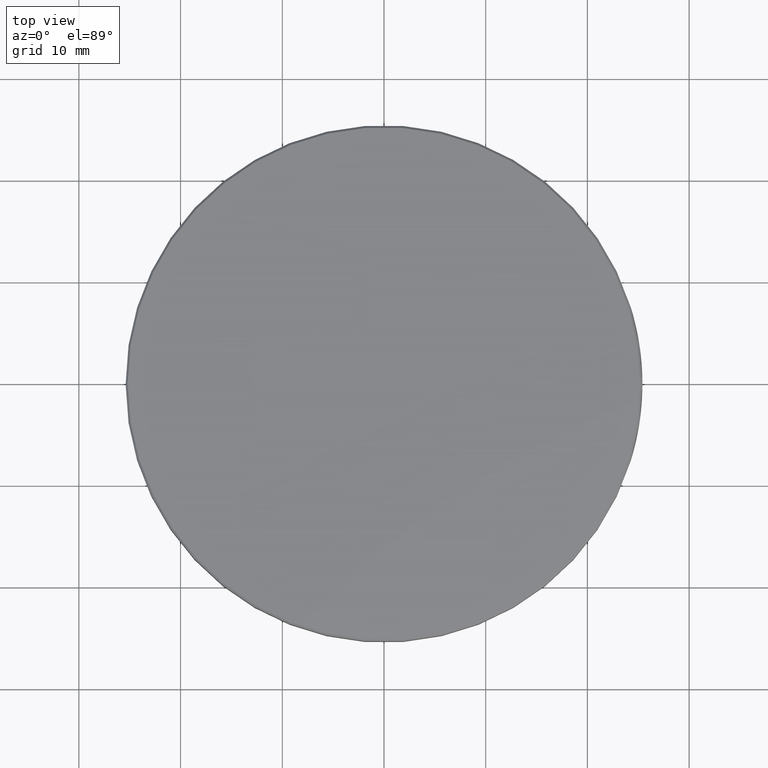
[diagram: clean part render]
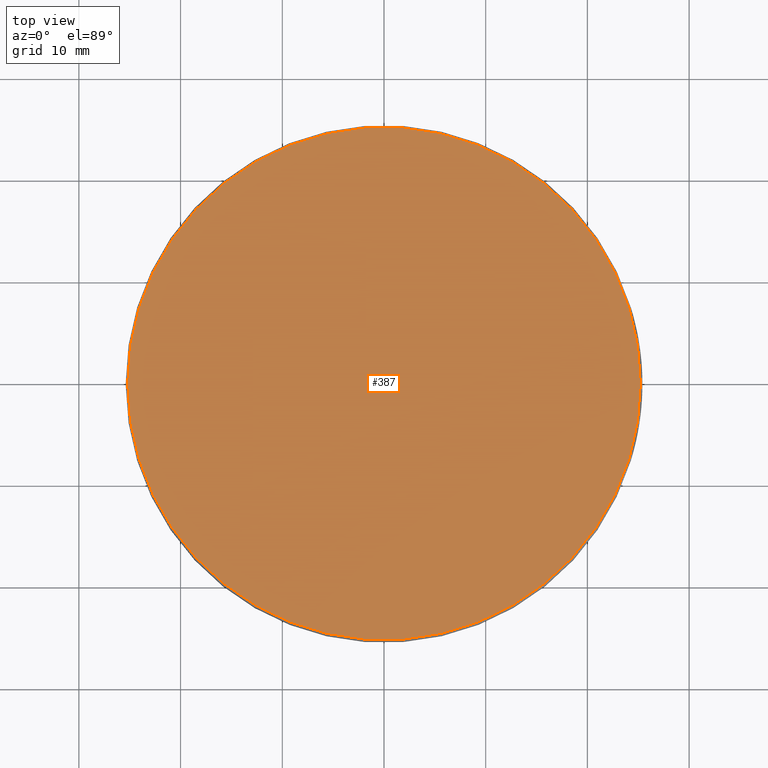
[diagram: same view with one face highlighted and labeled with its STEP entity id]
A machine part, top view. The second image highlights one B-rep face of the part: STEP entity #387.
In plain terms, the highlighted planar face has unit normal (0, 0, 1).
Its self-contained STEP definition (entity closure, byte-faithful):
#51 = DIRECTION ( 'NONE',  ( 0.0000000000000000000, 0.0000000000000000000, 1.000000000000000000 ) ) ;
#163 = FACE_OUTER_BOUND ( 'NONE', #1639, .T. ) ;
#183 = ORIENTED_EDGE ( 'NONE', *, *, #608, .T. ) ;
#387 = ADVANCED_FACE ( 'NONE', ( #163 ), #1787, .T. ) ;
#443 = AXIS2_PLACEMENT_3D ( 'NONE', #1126, #2016, #679 ) ;
#608 = EDGE_CURVE ( 'NONE', #808, #2228, #2007, .T. ) ;
#679 = DIRECTION ( 'NONE',  ( 1.000000000000000000, 0.0000000000000000000, -0.0000000000000000000 ) ) ;
#808 = VERTEX_POINT ( 'NONE', #2094 ) ;
#889 = AXIS2_PLACEMENT_3D ( 'NONE', #1394, #51, #1621 ) ;
#900 = EDGE_CURVE ( 'NONE', #2228, #808, #2082, .T. ) ;
#1035 = CARTESIAN_POINT ( 'NONE',  ( 0.0000000000000000000, 0.0000000000000000000, 2.500000000000000000 ) ) ;
#1126 = CARTESIAN_POINT ( 'NONE',  ( 0.0000000000000000000, 0.0000000000000000000, 2.500000000000000000 ) ) ;
#1249 = DIRECTION ( 'NONE',  ( 1.000000000000000000, 0.0000000000000000000, 0.0000000000000000000 ) ) ;
#1394 = CARTESIAN_POINT ( 'NONE',  ( 0.0000000000000000000, 0.0000000000000000000, 2.500000000000000000 ) ) ;
#1621 = DIRECTION ( 'NONE',  ( 1.000000000000000000, 0.0000000000000000000, 0.0000000000000000000 ) ) ;
#1622 = AXIS2_PLACEMENT_3D ( 'NONE', #1035, #2591, #1249 ) ;
#1639 = EDGE_LOOP ( 'NONE', ( #183, #1998 ) ) ;
#1776 = CARTESIAN_POINT ( 'NONE',  ( 25.20000000000001700, 3.098356401842805100E-015, 2.500000000000000000 ) ) ;
#1787 = PLANE ( 'NONE',  #443 ) ;
#1998 = ORIENTED_EDGE ( 'NONE', *, *, #900, .T. ) ;
#2007 = CIRCLE ( 'NONE', #889, 25.20000000000001700 ) ;
#2016 = DIRECTION ( 'NONE',  ( 0.0000000000000000000, 0.0000000000000000000, 1.000000000000000000 ) ) ;
#2082 = CIRCLE ( 'NONE', #1622, 25.20000000000001700 ) ;
#2094 = CARTESIAN_POINT ( 'NONE',  ( -25.20000000000001700, 0.0000000000000000000, 2.500000000000000000 ) ) ;
#2228 = VERTEX_POINT ( 'NONE', #1776 ) ;
#2591 = DIRECTION ( 'NONE',  ( 0.0000000000000000000, 0.0000000000000000000, 1.000000000000000000 ) ) ;